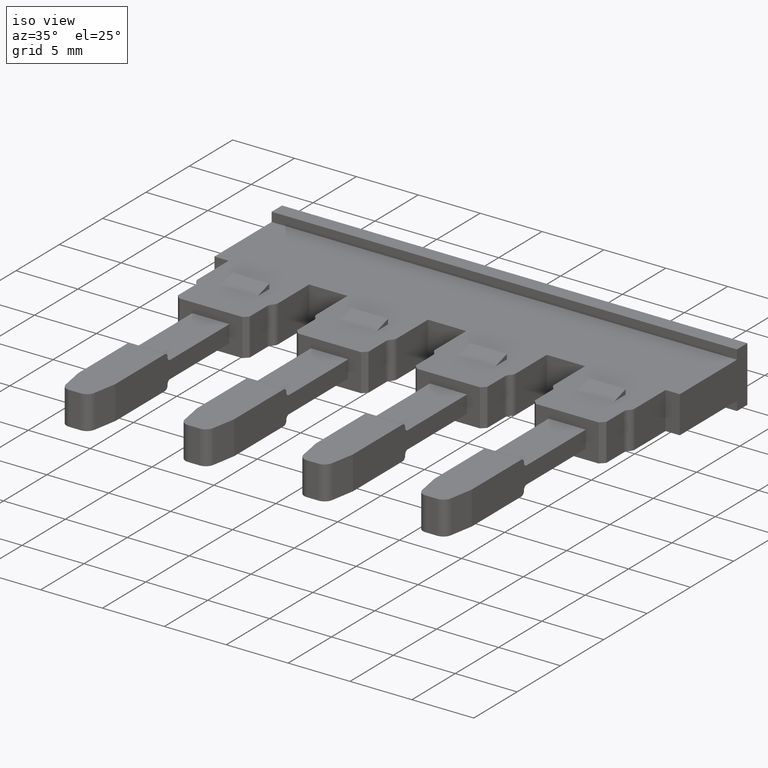
[diagram: clean part render]
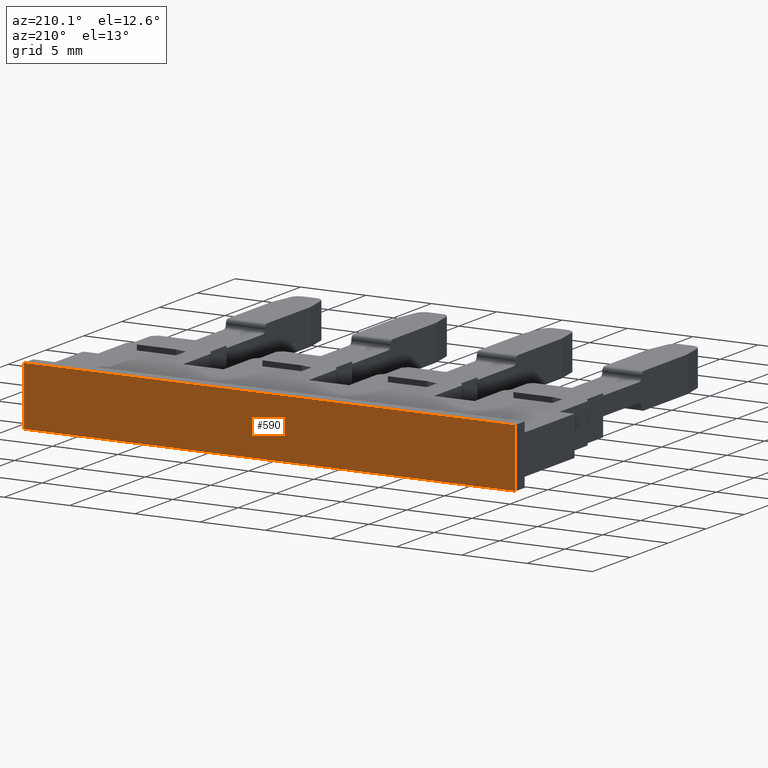
[diagram: tour spotlight — one face highlighted and labeled with its STEP entity id]
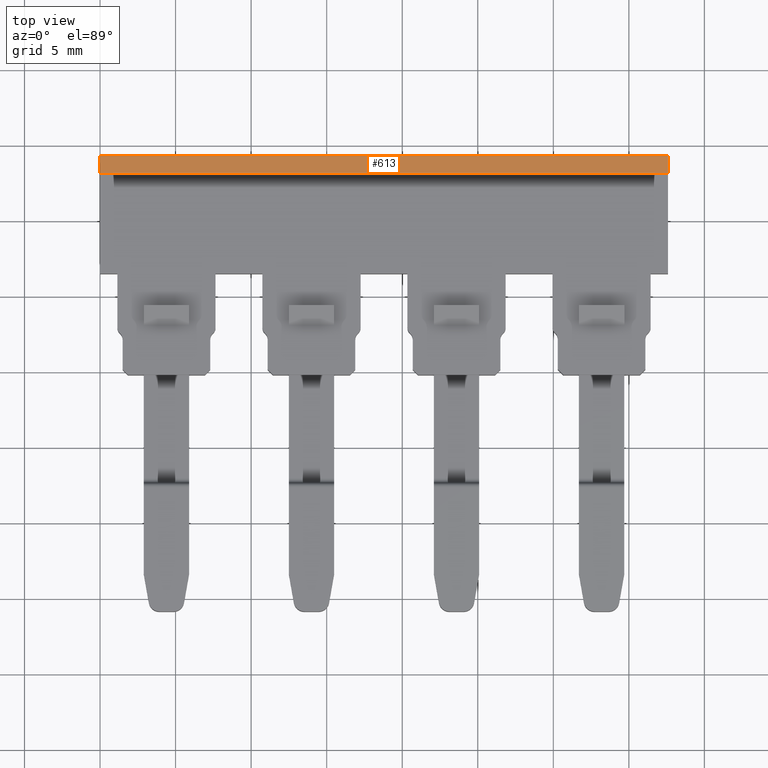
[diagram: tour spotlight — one face highlighted and labeled with its STEP entity id]
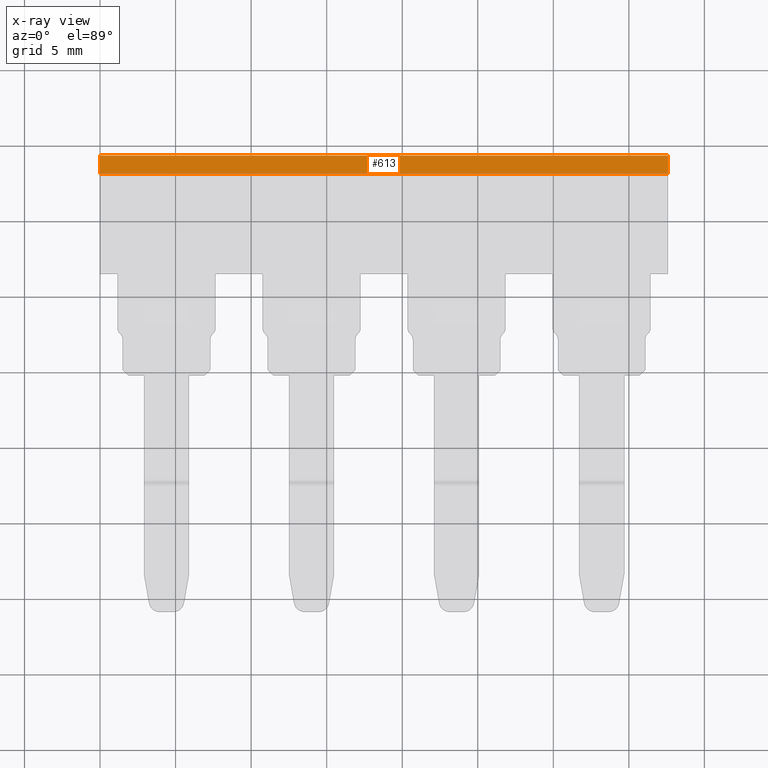
[diagram: x-ray of the same camera — body ghosted, this tour face saturated]
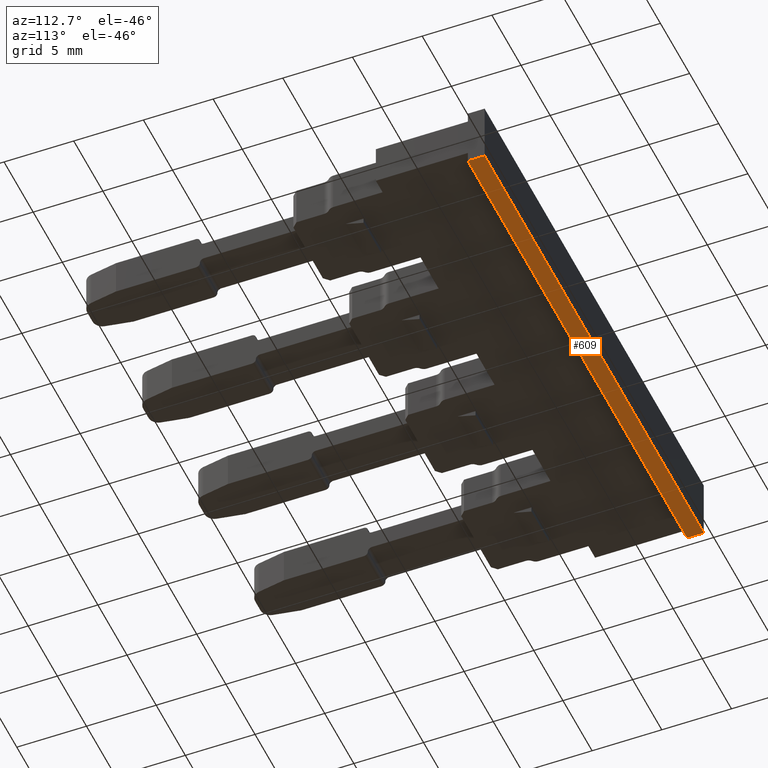
[diagram: tour spotlight — one face highlighted and labeled with its STEP entity id]
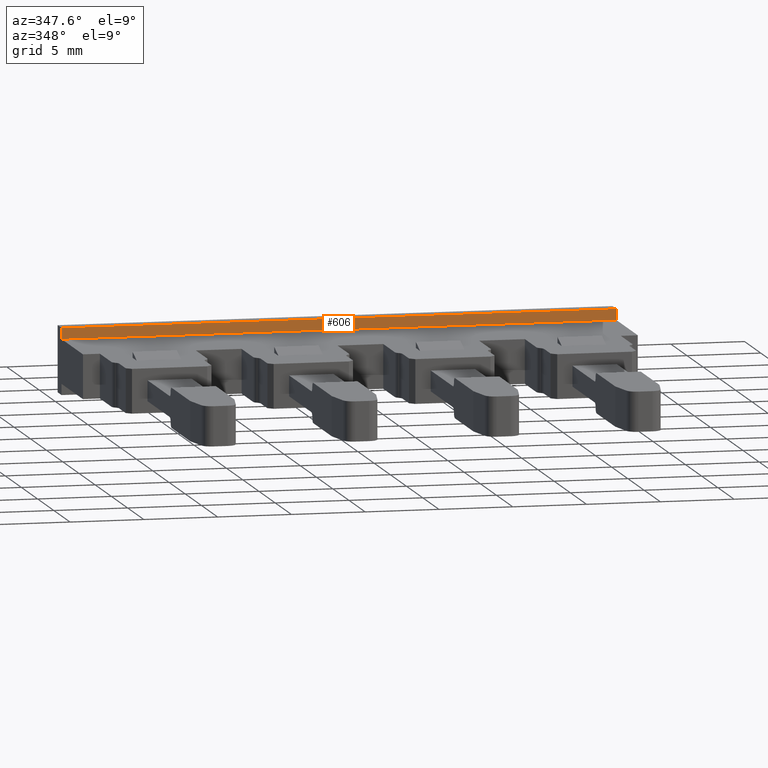
[diagram: tour spotlight — one face highlighted and labeled with its STEP entity id]
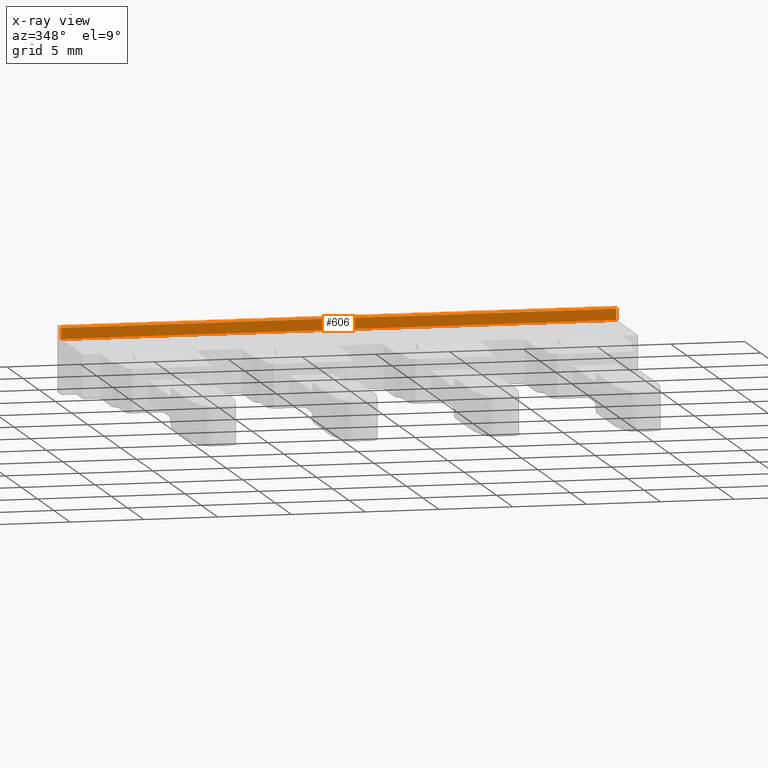
[diagram: x-ray of the same camera — body ghosted, this tour face saturated]
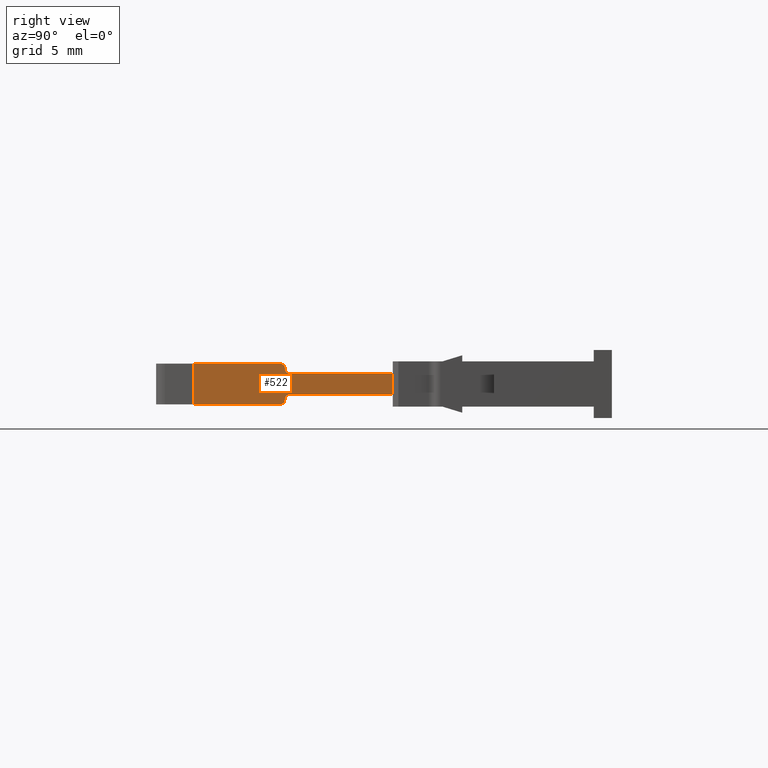
[diagram: tour spotlight — one face highlighted and labeled with its STEP entity id]
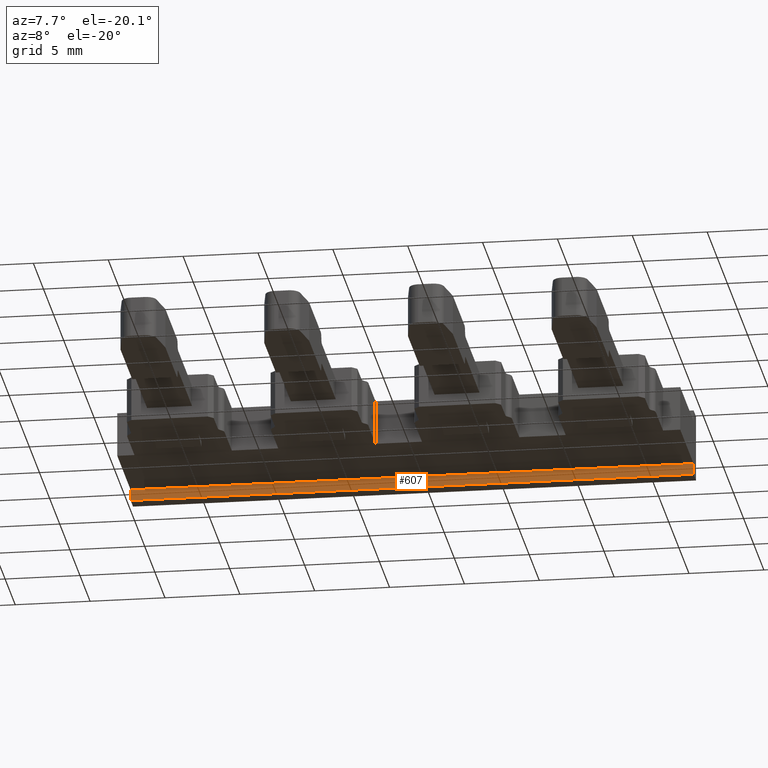
[diagram: tour spotlight — one face highlighted and labeled with its STEP entity id]
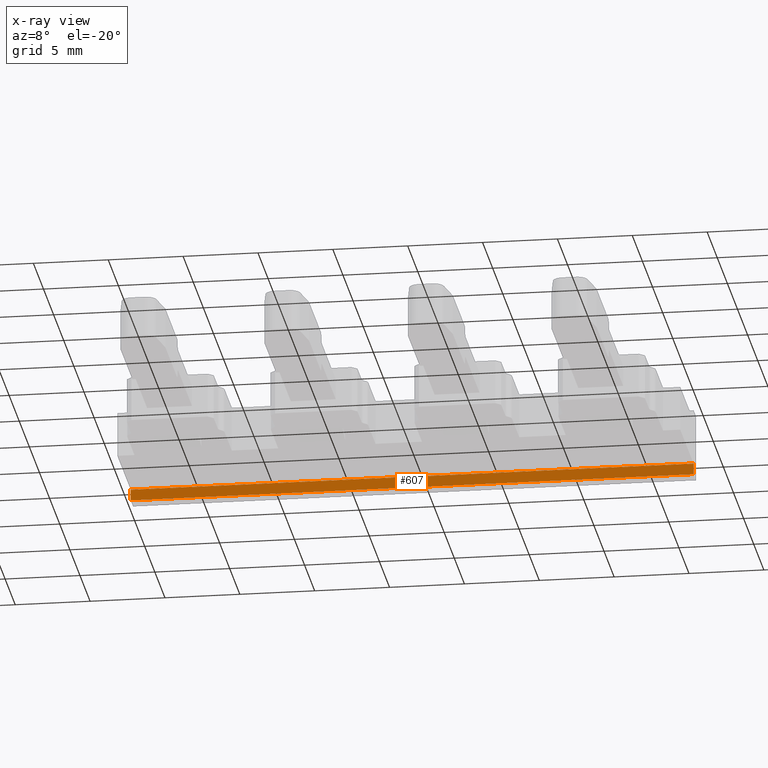
[diagram: x-ray of the same camera — body ghosted, this tour face saturated]
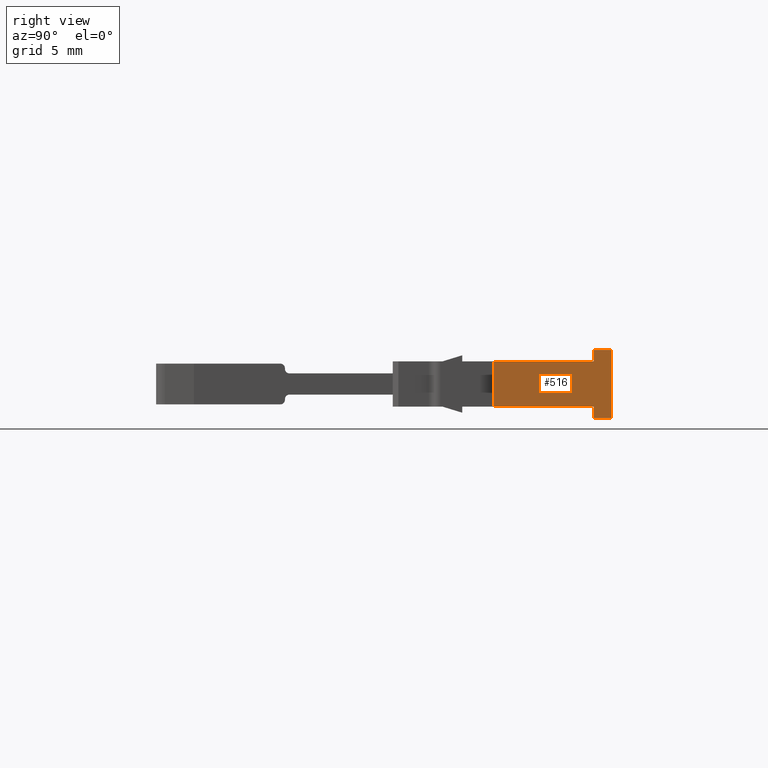
[diagram: tour spotlight — one face highlighted and labeled with its STEP entity id]
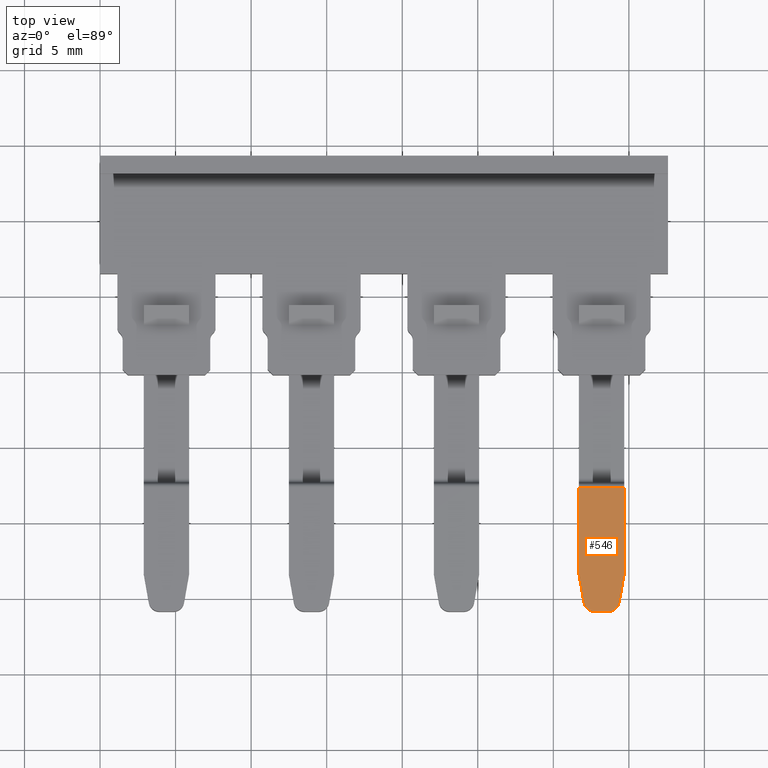
[diagram: tour spotlight — one face highlighted and labeled with its STEP entity id]
A machine part: a face-by-face anatomy tour. The part has 170 B-rep faces; the first image is the clean iso view, then the 8 largest visible faces are spotlighted one at a time (largest first), each with its STEP entity span.

Face 1 — auxiliary view, entity #590. In plain terms, the highlighted planar face has unit normal (0, -1, 0).
Definition (entity closure, byte-faithful):
#18 = EDGE_CURVE ( 'NONE', #5267, #5272, #1102, .T. ) ;
#29 = EDGE_CURVE ( 'NONE', #5267, #4983, #1149, .T. ) ;
#63 = EDGE_CURVE ( 'NONE', #5306, #5272, #1228, .T. ) ;
#64 = EDGE_CURVE ( 'NONE', #5306, #4983, #1229, .T. ) ;
#590 = ADVANCED_FACE ( 'NONE', ( #1841 ), #1838, .F. ) ;
#1102 = LINE ( 'NONE', #1122, #2934 ) ;
#1114 = DIRECTION ( 'NONE',  ( -0.0000000000000000000, -0.0000000000000000000, 1.000000000000000000 ) ) ;
#1122 = CARTESIAN_POINT ( 'NONE',  ( 1119.994470802329900, 674.2878760720548100, 3.000000000000000000 ) ) ;
#1149 = LINE ( 'NONE', #1174, #2928 ) ;
#1174 = CARTESIAN_POINT ( 'NONE',  ( 1129.594470802330100, 674.2878760720548100, -0.7499999999999997800 ) ) ;
#1176 = DIRECTION ( 'NONE',  ( 1.000000000000000000, 0.0000000000000000000, 0.0000000000000000000 ) ) ;
#1228 = LINE ( 'NONE', #1268, #2998 ) ;
#1229 = LINE ( 'NONE', #1239, #3008 ) ;
#1236 = DIRECTION ( 'NONE',  ( -1.000000000000000000, -0.0000000000000000000, -0.0000000000000000000 ) ) ;
#1239 = CARTESIAN_POINT ( 'NONE',  ( 1157.594465032600300, 674.2878760720548100, 3.000000000000000000 ) ) ;
#1240 = DIRECTION ( 'NONE',  ( -0.0000000000000000000, -0.0000000000000000000, -1.000000000000000000 ) ) ;
#1268 = CARTESIAN_POINT ( 'NONE',  ( 1129.594470802330100, 674.2878760720548100, 3.750000000000000000 ) ) ;
#1746 = ORIENTED_EDGE ( 'NONE', *, *, #18, .T. ) ;
#1759 = ORIENTED_EDGE ( 'NONE', *, *, #63, .F. ) ;
#1766 = ORIENTED_EDGE ( 'NONE', *, *, #29, .F. ) ;
#1779 = ORIENTED_EDGE ( 'NONE', *, *, #64, .T. ) ;
#1808 = DIRECTION ( 'NONE',  ( 0.0000000000000000000, -0.0000000000000000000, -1.000000000000000000 ) ) ;
#1832 = DIRECTION ( 'NONE',  ( 0.0000000000000000000, -1.000000000000000000, 0.0000000000000000000 ) ) ;
#1836 = CARTESIAN_POINT ( 'NONE',  ( 1129.594470802330100, 674.2878760720548100, 3.000000000000000000 ) ) ;
#1838 = PLANE ( 'NONE',  #2857 ) ;
#1841 = FACE_OUTER_BOUND ( 'NONE', #4957, .T. ) ;
#2062 = CARTESIAN_POINT ( 'NONE',  ( 1157.594465032600300, 674.2878760720548100, -0.7499999999999997800 ) ) ;
#2297 = CARTESIAN_POINT ( 'NONE',  ( 1119.994470802329900, 674.2878760720548100, -0.7499999999999997800 ) ) ;
#2314 = CARTESIAN_POINT ( 'NONE',  ( 1119.994470802329900, 674.2878760720548100, 3.750000000000000000 ) ) ;
#2368 = CARTESIAN_POINT ( 'NONE',  ( 1157.594465032600300, 674.2878760720548100, 3.750000000000000000 ) ) ;
#2857 = AXIS2_PLACEMENT_3D ( 'NONE', #1836, #1832, #1808 ) ;
#2928 = VECTOR ( 'NONE', #1176, 1000.000000000000000 ) ;
#2934 = VECTOR ( 'NONE', #1114, 1000.000000000000000 ) ;
#2998 = VECTOR ( 'NONE', #1236, 1000.000000000000000 ) ;
#3008 = VECTOR ( 'NONE', #1240, 1000.000000000000000 ) ;
#4957 = EDGE_LOOP ( 'NONE', ( #1779, #1766, #1746, #1759 ) ) ;
#4983 = VERTEX_POINT ( 'NONE', #2062 ) ;
#5267 = VERTEX_POINT ( 'NONE', #2297 ) ;
#5272 = VERTEX_POINT ( 'NONE', #2314 ) ;
#5306 = VERTEX_POINT ( 'NONE', #2368 ) ;

Face 2 — top view, entity #613. An x-ray twin of the same camera follows (body ghosted, this face saturated) — the face is partly hidden behind the body. In plain terms, the highlighted planar face has unit normal (0, 0, 1).
Definition (entity closure, byte-faithful):
#7 = EDGE_CURVE ( 'NONE', #5261, #5306, #1119, .T. ) ;
#36 = EDGE_CURVE ( 'NONE', #5272, #5030, #1218, .T. ) ;
#60 = EDGE_CURVE ( 'NONE', #5261, #5030, #1253, .T. ) ;
#63 = EDGE_CURVE ( 'NONE', #5306, #5272, #1228, .T. ) ;
#613 = ADVANCED_FACE ( 'NONE', ( #1935 ), #1967, .T. ) ;
#1118 = CARTESIAN_POINT ( 'NONE',  ( 1157.594465032600300, 673.0878760720547700, 3.750000000000000000 ) ) ;
#1119 = LINE ( 'NONE', #1118, #2926 ) ;
#1120 = DIRECTION ( 'NONE',  ( -0.0000000000000000000, 1.000000000000000000, 0.0000000000000000000 ) ) ;
#1196 = CARTESIAN_POINT ( 'NONE',  ( 1119.994470802329900, 666.6212584401425800, 3.750000000000000000 ) ) ;
#1210 = DIRECTION ( 'NONE',  ( -0.0000000000000000000, -1.000000000000000000, -0.0000000000000000000 ) ) ;
#1218 = LINE ( 'NONE', #1196, #2954 ) ;
#1225 = CARTESIAN_POINT ( 'NONE',  ( 1129.594470802330100, 673.0878760720547700, 3.750000000000000000 ) ) ;
#1228 = LINE ( 'NONE', #1268, #2998 ) ;
#1236 = DIRECTION ( 'NONE',  ( -1.000000000000000000, -0.0000000000000000000, -0.0000000000000000000 ) ) ;
#1250 = DIRECTION ( 'NONE',  ( -1.000000000000000000, -0.0000000000000000000, -0.0000000000000000000 ) ) ;
#1253 = LINE ( 'NONE', #1225, #3004 ) ;
#1268 = CARTESIAN_POINT ( 'NONE',  ( 1129.594470802330100, 674.2878760720548100, 3.750000000000000000 ) ) ;
#1743 = ORIENTED_EDGE ( 'NONE', *, *, #63, .T. ) ;
#1752 = ORIENTED_EDGE ( 'NONE', *, *, #7, .T. ) ;
#1763 = ORIENTED_EDGE ( 'NONE', *, *, #60, .F. ) ;
#1769 = ORIENTED_EDGE ( 'NONE', *, *, #36, .T. ) ;
#1935 = FACE_OUTER_BOUND ( 'NONE', #4967, .T. ) ;
#1937 = DIRECTION ( 'NONE',  ( 1.000000000000000000, 0.0000000000000000000, -0.0000000000000000000 ) ) ;
#1946 = DIRECTION ( 'NONE',  ( 0.0000000000000000000, 0.0000000000000000000, 1.000000000000000000 ) ) ;
#1967 = PLANE ( 'NONE',  #2846 ) ;
#1968 = CARTESIAN_POINT ( 'NONE',  ( 1129.594470802330100, 673.0878760720547700, 3.750000000000000000 ) ) ;
#2069 = CARTESIAN_POINT ( 'NONE',  ( 1119.994470802329900, 673.0878760720547700, 3.750000000000000000 ) ) ;
#2296 = CARTESIAN_POINT ( 'NONE',  ( 1157.594465032600300, 673.0878760720547700, 3.750000000000000000 ) ) ;
#2314 = CARTESIAN_POINT ( 'NONE',  ( 1119.994470802329900, 674.2878760720548100, 3.750000000000000000 ) ) ;
#2368 = CARTESIAN_POINT ( 'NONE',  ( 1157.594465032600300, 674.2878760720548100, 3.750000000000000000 ) ) ;
#2846 = AXIS2_PLACEMENT_3D ( 'NONE', #1968, #1946, #1937 ) ;
#2926 = VECTOR ( 'NONE', #1120, 1000.000000000000000 ) ;
#2954 = VECTOR ( 'NONE', #1210, 1000.000000000000000 ) ;
#2998 = VECTOR ( 'NONE', #1236, 1000.000000000000000 ) ;
#3004 = VECTOR ( 'NONE', #1250, 1000.000000000000000 ) ;
#4967 = EDGE_LOOP ( 'NONE', ( #1743, #1769, #1763, #1752 ) ) ;
#5030 = VERTEX_POINT ( 'NONE', #2069 ) ;
#5261 = VERTEX_POINT ( 'NONE', #2296 ) ;
#5272 = VERTEX_POINT ( 'NONE', #2314 ) ;
#5306 = VERTEX_POINT ( 'NONE', #2368 ) ;

Face 3 — auxiliary view, entity #609. In plain terms, the highlighted planar face has unit normal (0, 0, 1).
Definition (entity closure, byte-faithful):
#12 = EDGE_CURVE ( 'NONE', #5305, #4983, #1091, .T. ) ;
#29 = EDGE_CURVE ( 'NONE', #5267, #4983, #1149, .T. ) ;
#58 = EDGE_CURVE ( 'NONE', #5267, #5033, #1257, .T. ) ;
#69 = EDGE_CURVE ( 'NONE', #5033, #5305, #1290, .T. ) ;
#609 = ADVANCED_FACE ( 'NONE', ( #1969 ), #1960, .F. ) ;
#1086 = CARTESIAN_POINT ( 'NONE',  ( 1157.594465032600300, 673.0878760720547700, -0.7499999999999997800 ) ) ;
#1090 = DIRECTION ( 'NONE',  ( -0.0000000000000000000, 1.000000000000000000, 0.0000000000000000000 ) ) ;
#1091 = LINE ( 'NONE', #1086, #2955 ) ;
#1149 = LINE ( 'NONE', #1174, #2928 ) ;
#1174 = CARTESIAN_POINT ( 'NONE',  ( 1129.594470802330100, 674.2878760720548100, -0.7499999999999997800 ) ) ;
#1176 = DIRECTION ( 'NONE',  ( 1.000000000000000000, 0.0000000000000000000, 0.0000000000000000000 ) ) ;
#1257 = LINE ( 'NONE', #1258, #2984 ) ;
#1258 = CARTESIAN_POINT ( 'NONE',  ( 1119.994470802329900, 673.0878760720547700, -0.7499999999999997800 ) ) ;
#1269 = DIRECTION ( 'NONE',  ( 0.0000000000000000000, -1.000000000000000000, -0.0000000000000000000 ) ) ;
#1290 = LINE ( 'NONE', #1292, #2977 ) ;
#1292 = CARTESIAN_POINT ( 'NONE',  ( 1129.594470802330100, 673.0878760720547700, -0.7499999999999997800 ) ) ;
#1302 = DIRECTION ( 'NONE',  ( 1.000000000000000000, 0.0000000000000000000, 0.0000000000000000000 ) ) ;
#1762 = ORIENTED_EDGE ( 'NONE', *, *, #69, .F. ) ;
#1788 = ORIENTED_EDGE ( 'NONE', *, *, #12, .F. ) ;
#1789 = ORIENTED_EDGE ( 'NONE', *, *, #58, .F. ) ;
#1797 = ORIENTED_EDGE ( 'NONE', *, *, #29, .T. ) ;
#1953 = DIRECTION ( 'NONE',  ( 1.000000000000000000, 0.0000000000000000000, -0.0000000000000000000 ) ) ;
#1960 = PLANE ( 'NONE',  #2890 ) ;
#1965 = CARTESIAN_POINT ( 'NONE',  ( 1129.594470802330100, 673.0878760720547700, -0.7499999999999997800 ) ) ;
#1966 = DIRECTION ( 'NONE',  ( 0.0000000000000000000, 0.0000000000000000000, 1.000000000000000000 ) ) ;
#1969 = FACE_OUTER_BOUND ( 'NONE', #4974, .T. ) ;
#2062 = CARTESIAN_POINT ( 'NONE',  ( 1157.594465032600300, 674.2878760720548100, -0.7499999999999997800 ) ) ;
#2075 = CARTESIAN_POINT ( 'NONE',  ( 1119.994470802329900, 673.0878760720547700, -0.7499999999999997800 ) ) ;
#2297 = CARTESIAN_POINT ( 'NONE',  ( 1119.994470802329900, 674.2878760720548100, -0.7499999999999997800 ) ) ;
#2366 = CARTESIAN_POINT ( 'NONE',  ( 1157.594465032600300, 673.0878760720547700, -0.7499999999999997800 ) ) ;
#2890 = AXIS2_PLACEMENT_3D ( 'NONE', #1965, #1966, #1953 ) ;
#2928 = VECTOR ( 'NONE', #1176, 1000.000000000000000 ) ;
#2955 = VECTOR ( 'NONE', #1090, 1000.000000000000000 ) ;
#2977 = VECTOR ( 'NONE', #1302, 1000.000000000000000 ) ;
#2984 = VECTOR ( 'NONE', #1269, 1000.000000000000000 ) ;
#4974 = EDGE_LOOP ( 'NONE', ( #1788, #1762, #1789, #1797 ) ) ;
#4983 = VERTEX_POINT ( 'NONE', #2062 ) ;
#5033 = VERTEX_POINT ( 'NONE', #2075 ) ;
#5267 = VERTEX_POINT ( 'NONE', #2297 ) ;
#5305 = VERTEX_POINT ( 'NONE', #2366 ) ;

Face 4 — auxiliary view, entity #606. An x-ray twin of the same camera follows (body ghosted, this face saturated) — the face is partly hidden behind the body. In plain terms, the highlighted planar face has unit normal (0, -1, 0).
Definition (entity closure, byte-faithful):
#21 = EDGE_CURVE ( 'NONE', #4995, #5261, #1098, .T. ) ;
#25 = EDGE_CURVE ( 'NONE', #5001, #4995, #1173, .T. ) ;
#37 = EDGE_CURVE ( 'NONE', #5030, #5001, #1209, .T. ) ;
#60 = EDGE_CURVE ( 'NONE', #5261, #5030, #1253, .T. ) ;
#606 = ADVANCED_FACE ( 'NONE', ( #1959 ), #1912, .T. ) ;
#1098 = LINE ( 'NONE', #1127, #2915 ) ;
#1127 = CARTESIAN_POINT ( 'NONE',  ( 1157.594465032600300, 673.0878760720547700, 3.000000000000000000 ) ) ;
#1145 = DIRECTION ( 'NONE',  ( 1.000000000000000000, -0.0000000000000000000, 0.0000000000000000000 ) ) ;
#1152 = CARTESIAN_POINT ( 'NONE',  ( 1137.394467408302300, 673.0878760720547700, 3.000000000000000000 ) ) ;
#1168 = DIRECTION ( 'NONE',  ( 0.0000000000000000000, 0.0000000000000000000, 1.000000000000000000 ) ) ;
#1173 = LINE ( 'NONE', #1152, #2940 ) ;
#1203 = CARTESIAN_POINT ( 'NONE',  ( 1119.994470802329900, 673.0878760720547700, -0.7499999999999997800 ) ) ;
#1208 = DIRECTION ( 'NONE',  ( 0.0000000000000000000, -0.0000000000000000000, -1.000000000000000000 ) ) ;
#1209 = LINE ( 'NONE', #1203, #2912 ) ;
#1225 = CARTESIAN_POINT ( 'NONE',  ( 1129.594470802330100, 673.0878760720547700, 3.750000000000000000 ) ) ;
#1250 = DIRECTION ( 'NONE',  ( -1.000000000000000000, -0.0000000000000000000, -0.0000000000000000000 ) ) ;
#1253 = LINE ( 'NONE', #1225, #3004 ) ;
#1760 = ORIENTED_EDGE ( 'NONE', *, *, #25, .T. ) ;
#1767 = ORIENTED_EDGE ( 'NONE', *, *, #21, .T. ) ;
#1768 = ORIENTED_EDGE ( 'NONE', *, *, #37, .T. ) ;
#1801 = ORIENTED_EDGE ( 'NONE', *, *, #60, .T. ) ;
#1912 = PLANE ( 'NONE',  #2889 ) ;
#1954 = CARTESIAN_POINT ( 'NONE',  ( 1129.594470802330100, 673.0878760720547700, -0.7499999999999997800 ) ) ;
#1959 = FACE_OUTER_BOUND ( 'NONE', #4936, .T. ) ;
#1972 = DIRECTION ( 'NONE',  ( 0.0000000000000000000, -1.000000000000000000, 0.0000000000000000000 ) ) ;
#1976 = DIRECTION ( 'NONE',  ( 0.0000000000000000000, -0.0000000000000000000, -1.000000000000000000 ) ) ;
#2051 = CARTESIAN_POINT ( 'NONE',  ( 1157.594465032600300, 673.0878760720547700, 3.000000000000000000 ) ) ;
#2069 = CARTESIAN_POINT ( 'NONE',  ( 1119.994470802329900, 673.0878760720547700, 3.750000000000000000 ) ) ;
#2079 = CARTESIAN_POINT ( 'NONE',  ( 1119.994470802329900, 673.0878760720547700, 3.000000000000000000 ) ) ;
#2296 = CARTESIAN_POINT ( 'NONE',  ( 1157.594465032600300, 673.0878760720547700, 3.750000000000000000 ) ) ;
#2889 = AXIS2_PLACEMENT_3D ( 'NONE', #1954, #1972, #1976 ) ;
#2912 = VECTOR ( 'NONE', #1208, 1000.000000000000000 ) ;
#2915 = VECTOR ( 'NONE', #1168, 1000.000000000000000 ) ;
#2940 = VECTOR ( 'NONE', #1145, 1000.000000000000000 ) ;
#3004 = VECTOR ( 'NONE', #1250, 1000.000000000000000 ) ;
#4936 = EDGE_LOOP ( 'NONE', ( #1801, #1768, #1760, #1767 ) ) ;
#4995 = VERTEX_POINT ( 'NONE', #2051 ) ;
#5001 = VERTEX_POINT ( 'NONE', #2079 ) ;
#5030 = VERTEX_POINT ( 'NONE', #2069 ) ;
#5261 = VERTEX_POINT ( 'NONE', #2296 ) ;

Face 5 — right view, entity #522. In plain terms, the highlighted planar face has unit normal (-1, -0, -0).
Definition (entity closure, byte-faithful):
#284 = EDGE_CURVE ( 'NONE', #5278, #5294, #3771, .T. ) ;
#285 = EDGE_CURVE ( 'NONE', #5298, #5230, #3748, .T. ) ;
#291 = EDGE_CURVE ( 'NONE', #5199, #5278, #3813, .T. ) ;
#292 = EDGE_CURVE ( 'NONE', #5307, #5199, #3807, .T. ) ;
#300 = EDGE_CURVE ( 'NONE', #5203, #5230, #3798, .T. ) ;
#306 = EDGE_CURVE ( 'NONE', #5224, #5294, #3292, .T. ) ;
#334 = EDGE_CURVE ( 'NONE', #5237, #5224, #3885, .T. ) ;
#366 = EDGE_CURVE ( 'NONE', #5203, #5237, #3304, .T. ) ;
#367 = EDGE_CURVE ( 'NONE', #5209, #5204, #3342, .T. ) ;
#384 = EDGE_CURVE ( 'NONE', #5298, #5209, #4099, .T. ) ;
#390 = EDGE_CURVE ( 'NONE', #5307, #5279, #3360, .T. ) ;
#409 = EDGE_CURVE ( 'NONE', #5279, #5204, #4107, .T. ) ;
#522 = ADVANCED_FACE ( 'NONE', ( #2528 ), #2549, .F. ) ;
#1685 = ORIENTED_EDGE ( 'NONE', *, *, #366, .F. ) ;
#1687 = ORIENTED_EDGE ( 'NONE', *, *, #409, .F. ) ;
#1688 = ORIENTED_EDGE ( 'NONE', *, *, #292, .T. ) ;
#1690 = ORIENTED_EDGE ( 'NONE', *, *, #334, .F. ) ;
#1697 = ORIENTED_EDGE ( 'NONE', *, *, #284, .T. ) ;
#1699 = ORIENTED_EDGE ( 'NONE', *, *, #367, .T. ) ;
#1714 = ORIENTED_EDGE ( 'NONE', *, *, #384, .T. ) ;
#1732 = ORIENTED_EDGE ( 'NONE', *, *, #291, .T. ) ;
#1737 = ORIENTED_EDGE ( 'NONE', *, *, #285, .F. ) ;
#1739 = ORIENTED_EDGE ( 'NONE', *, *, #306, .F. ) ;
#1748 = ORIENTED_EDGE ( 'NONE', *, *, #300, .T. ) ;
#1755 = ORIENTED_EDGE ( 'NONE', *, *, #390, .F. ) ;
#2219 = CARTESIAN_POINT ( 'NONE',  ( 1154.694442503212000, 652.6527367076482700, 2.500000000000050600 ) ) ;
#2223 = CARTESIAN_POINT ( 'NONE',  ( 1154.694444914909600, 652.6527367076623700, 0.4522013187405647900 ) ) ;
#2226 = CARTESIAN_POINT ( 'NONE',  ( 1154.694444807468700, 652.9527367076417500, 2.200000000000128100 ) ) ;
#2237 = CARTESIAN_POINT ( 'NONE',  ( 1154.694444700027800, 652.9527367076701700, 0.8000061035298857700 ) ) ;
#2239 = CARTESIAN_POINT ( 'NONE',  ( 1154.694444700027600, 659.7892820011524000, 0.8000061035156760300 ) ) ;
#2245 = CARTESIAN_POINT ( 'NONE',  ( 1154.694447179915200, 646.6283161340935500, 2.847804784775002800 ) ) ;
#2298 = CARTESIAN_POINT ( 'NONE',  ( 1154.694445129791600, 652.3527367076611700, 0.1522013187355868400 ) ) ;
#2317 = CARTESIAN_POINT ( 'NONE',  ( 1154.694449230039300, 646.6283161340936700, 0.1522013187403555300 ) ) ;
#2324 = CARTESIAN_POINT ( 'NONE',  ( 1154.694444914909600, 659.7892820011524000, 2.200000000000050800 ) ) ;
#2327 = CARTESIAN_POINT ( 'NONE',  ( 1154.694444914909600, 652.6527367076662400, 2.547804784775054900 ) ) ;
#2345 = CARTESIAN_POINT ( 'NONE',  ( 1154.694444914909600, 652.6527367076817000, 0.5000061035157291600 ) ) ;
#2370 = CARTESIAN_POINT ( 'NONE',  ( 1154.694445129791300, 652.3527367076559400, 2.847804784785298100 ) ) ;
#2515 = CARTESIAN_POINT ( 'NONE',  ( 1154.694458151265500, 634.1732509684160300, 1.500000000000051500 ) ) ;
#2517 = DIRECTION ( 'NONE',  ( 7.162729585980651700E-007, -0.9999999999997434300, 0.0000000000000000000 ) ) ;
#2528 = FACE_OUTER_BOUND ( 'NONE', #4821, .T. ) ;
#2542 = DIRECTION ( 'NONE',  ( -0.9999999999997435400, -7.162729585980652700E-007, -5.364441115333136100E-014 ) ) ;
#2549 = PLANE ( 'NONE',  #3472 ) ;
#3183 = VECTOR ( 'NONE', #3767, 1000.000000000000000 ) ;
#3216 = VECTOR ( 'NONE', #3737, 1000.000000000000100 ) ;
#3241 = VECTOR ( 'NONE', #3942, 1000.000000000000000 ) ;
#3258 = VECTOR ( 'NONE', #3801, 1000.000000000000100 ) ;
#3274 = VECTOR ( 'NONE', #3794, 1000.000000000000000 ) ;
#3286 = AXIS2_PLACEMENT_3D ( 'NONE', #3830, #3864, #3854 ) ;
#3291 = VECTOR ( 'NONE', #3821, 1000.000000000000000 ) ;
#3292 = CIRCLE ( 'NONE', #3286, 0.2999999999999672400 ) ;
#3301 = AXIS2_PLACEMENT_3D ( 'NONE', #4064, #4093, #4105 ) ;
#3304 = CIRCLE ( 'NONE', #3338, 0.2999999999999672900 ) ;
#3306 = VECTOR ( 'NONE', #4096, 1000.000000000000000 ) ;
#3338 = AXIS2_PLACEMENT_3D ( 'NONE', #4032, #4015, #4017 ) ;
#3342 = CIRCLE ( 'NONE', #3351, 0.2999999999999328800 ) ;
#3351 = AXIS2_PLACEMENT_3D ( 'NONE', #4030, #4035, #4054 ) ;
#3360 = CIRCLE ( 'NONE', #3301, 0.2999999999999674000 ) ;
#3401 = VECTOR ( 'NONE', #4167, 1000.000000000000000 ) ;
#3472 = AXIS2_PLACEMENT_3D ( 'NONE', #2515, #2542, #2517 ) ;
#3737 = DIRECTION ( 'NONE',  ( -7.162729585980651700E-007, 0.9999999999997434300, -8.974220355951169400E-013 ) ) ;
#3743 = CARTESIAN_POINT ( 'NONE',  ( 1154.694439803195100, 659.7892820011524000, 3.759999999999862100 ) ) ;
#3748 = LINE ( 'NONE', #3743, #3183 ) ;
#3754 = CARTESIAN_POINT ( 'NONE',  ( 1154.694449230035600, 646.6283210584171000, 0.1522013187407240700 ) ) ;
#3767 = DIRECTION ( 'NONE',  ( 5.364441115334512500E-014, 0.0000000000000000000, -1.000000000000000000 ) ) ;
#3771 = LINE ( 'NONE', #3754, #3216 ) ;
#3779 = CARTESIAN_POINT ( 'NONE',  ( 1154.694440091515200, 646.6283161340934400, -8.894767489097951300 ) ) ;
#3789 = CARTESIAN_POINT ( 'NONE',  ( 1154.694444700027600, 641.5303140484550100, 0.8000061035156760300 ) ) ;
#3794 = DIRECTION ( 'NONE',  ( 5.202683949995305800E-014, -9.173720110939495000E-015, -1.000000000000000000 ) ) ;
#3798 = LINE ( 'NONE', #3789, #3291 ) ;
#3801 = DIRECTION ( 'NONE',  ( 7.162729585980651700E-007, -0.9999999999997434300, -1.798537245413692200E-012 ) ) ;
#3807 = LINE ( 'NONE', #3815, #3258 ) ;
#3813 = LINE ( 'NONE', #3779, #3274 ) ;
#3815 = CARTESIAN_POINT ( 'NONE',  ( 1154.694445129787700, 652.3527416319764100, 2.847804784785298100 ) ) ;
#3821 = DIRECTION ( 'NONE',  ( 5.677532115032497500E-037, 1.000000000000000000, -1.058364141383339600E-023 ) ) ;
#3830 = CARTESIAN_POINT ( 'NONE',  ( 1154.694440091514700, 652.3527367076559400, 0.4522013187407246700 ) ) ;
#3854 = DIRECTION ( 'NONE',  ( 0.0000000000000000000, 0.0000000000000000000, 1.000000000000000000 ) ) ;
#3864 = DIRECTION ( 'NONE',  ( -1.000000000000000000, 0.0000000000000000000, -5.364441115151316900E-014 ) ) ;
#3885 = LINE ( 'NONE', #3947, #3241 ) ;
#3942 = DIRECTION ( 'NONE',  ( 5.364441115151316900E-014, -0.0000000000000000000, -1.000000000000000000 ) ) ;
#3947 = CARTESIAN_POINT ( 'NONE',  ( 1154.694440091515200, 652.6527367076765800, -8.894767489097951300 ) ) ;
#4015 = DIRECTION ( 'NONE',  ( 1.000000000000000000, -0.0000000000000000000, 5.364441115151316900E-014 ) ) ;
#4017 = DIRECTION ( 'NONE',  ( 0.0000000000000000000, 0.0000000000000000000, 1.000000000000000000 ) ) ;
#4030 = CARTESIAN_POINT ( 'NONE',  ( 1154.694444700027600, 652.9527367076431100, 2.500000000000050600 ) ) ;
#4032 = CARTESIAN_POINT ( 'NONE',  ( 1154.694440091514700, 652.9527367076971100, 0.5000061035156759800 ) ) ;
#4035 = DIRECTION ( 'NONE',  ( -0.9999999999997435400, -7.162729585980652700E-007, -5.364441115333136800E-014 ) ) ;
#4054 = DIRECTION ( 'NONE',  ( 7.162729668646924300E-007, -0.9999999999997435400, 0.0000000000000000000 ) ) ;
#4064 = CARTESIAN_POINT ( 'NONE',  ( 1154.694440091514500, 652.3527367076559400, 2.547804784775002100 ) ) ;
#4076 = CARTESIAN_POINT ( 'NONE',  ( 1154.694444914909600, 641.5303140484550100, 2.200000000000050800 ) ) ;
#4093 = DIRECTION ( 'NONE',  ( -1.000000000000000000, 0.0000000000000000000, -5.364441115151316900E-014 ) ) ;
#4096 = DIRECTION ( 'NONE',  ( -5.677532115032497500E-037, -1.000000000000000000, 1.058364141383339600E-023 ) ) ;
#4099 = LINE ( 'NONE', #4076, #3306 ) ;
#4105 = DIRECTION ( 'NONE',  ( 0.0000000000000000000, 0.0000000000000000000, 1.000000000000000000 ) ) ;
#4107 = LINE ( 'NONE', #4163, #3401 ) ;
#4163 = CARTESIAN_POINT ( 'NONE',  ( 1154.694440091515200, 652.6527367076765800, -8.894767489097951300 ) ) ;
#4167 = DIRECTION ( 'NONE',  ( 5.364441115151316900E-014, -0.0000000000000000000, -1.000000000000000000 ) ) ;
#4821 = EDGE_LOOP ( 'NONE', ( #1685, #1748, #1737, #1714, #1699, #1687, #1755, #1688, #1732, #1697, #1739, #1690 ) ) ;
#5199 = VERTEX_POINT ( 'NONE', #2245 ) ;
#5203 = VERTEX_POINT ( 'NONE', #2237 ) ;
#5204 = VERTEX_POINT ( 'NONE', #2219 ) ;
#5209 = VERTEX_POINT ( 'NONE', #2226 ) ;
#5224 = VERTEX_POINT ( 'NONE', #2223 ) ;
#5230 = VERTEX_POINT ( 'NONE', #2239 ) ;
#5237 = VERTEX_POINT ( 'NONE', #2345 ) ;
#5278 = VERTEX_POINT ( 'NONE', #2317 ) ;
#5279 = VERTEX_POINT ( 'NONE', #2327 ) ;
#5294 = VERTEX_POINT ( 'NONE', #2298 ) ;
#5298 = VERTEX_POINT ( 'NONE', #2324 ) ;
#5307 = VERTEX_POINT ( 'NONE', #2370 ) ;

Face 6 — auxiliary view, entity #607. An x-ray twin of the same camera follows (body ghosted, this face saturated) — the face is partly hidden behind the body. In plain terms, the highlighted planar face has unit normal (0, -1, 0).
Definition (entity closure, byte-faithful):
#61 = EDGE_CURVE ( 'NONE', #5022, #5033, #1223, .T. ) ;
#69 = EDGE_CURVE ( 'NONE', #5033, #5305, #1290, .T. ) ;
#70 = EDGE_CURVE ( 'NONE', #5305, #4997, #1287, .T. ) ;
#79 = EDGE_CURVE ( 'NONE', #5022, #4997, #1313, .T. ) ;
#607 = ADVANCED_FACE ( 'NONE', ( #1934 ), #1964, .T. ) ;
#1223 = LINE ( 'NONE', #1232, #3019 ) ;
#1232 = CARTESIAN_POINT ( 'NONE',  ( 1119.994470802329900, 673.0878760720547700, -0.7499999999999997800 ) ) ;
#1256 = DIRECTION ( 'NONE',  ( 0.0000000000000000000, -0.0000000000000000000, -1.000000000000000000 ) ) ;
#1271 = CARTESIAN_POINT ( 'NONE',  ( 1157.594465032600300, 673.0878760720547700, -0.7499999999999997800 ) ) ;
#1279 = CARTESIAN_POINT ( 'NONE',  ( 1137.394467408302300, 673.0878760720547700, 0.0000000000000000000 ) ) ;
#1287 = LINE ( 'NONE', #1271, #3006 ) ;
#1290 = LINE ( 'NONE', #1292, #2977 ) ;
#1292 = CARTESIAN_POINT ( 'NONE',  ( 1129.594470802330100, 673.0878760720547700, -0.7499999999999997800 ) ) ;
#1299 = DIRECTION ( 'NONE',  ( 1.000000000000000000, -0.0000000000000000000, 0.0000000000000000000 ) ) ;
#1301 = DIRECTION ( 'NONE',  ( -0.0000000000000000000, 0.0000000000000000000, 1.000000000000000000 ) ) ;
#1302 = DIRECTION ( 'NONE',  ( 1.000000000000000000, 0.0000000000000000000, 0.0000000000000000000 ) ) ;
#1313 = LINE ( 'NONE', #1279, #3010 ) ;
#1773 = ORIENTED_EDGE ( 'NONE', *, *, #70, .T. ) ;
#1775 = ORIENTED_EDGE ( 'NONE', *, *, #79, .F. ) ;
#1786 = ORIENTED_EDGE ( 'NONE', *, *, #69, .T. ) ;
#1799 = ORIENTED_EDGE ( 'NONE', *, *, #61, .T. ) ;
#1925 = DIRECTION ( 'NONE',  ( 0.0000000000000000000, -0.0000000000000000000, -1.000000000000000000 ) ) ;
#1934 = FACE_OUTER_BOUND ( 'NONE', #4977, .T. ) ;
#1939 = CARTESIAN_POINT ( 'NONE',  ( 1129.594470802330100, 673.0878760720547700, -0.7499999999999997800 ) ) ;
#1964 = PLANE ( 'NONE',  #2883 ) ;
#1975 = DIRECTION ( 'NONE',  ( 0.0000000000000000000, -1.000000000000000000, 0.0000000000000000000 ) ) ;
#2075 = CARTESIAN_POINT ( 'NONE',  ( 1119.994470802329900, 673.0878760720547700, -0.7499999999999997800 ) ) ;
#2082 = CARTESIAN_POINT ( 'NONE',  ( 1157.594465032600300, 673.0878760720547700, 0.0000000000000000000 ) ) ;
#2084 = CARTESIAN_POINT ( 'NONE',  ( 1119.994470802329900, 673.0878760720547700, 0.0000000000000000000 ) ) ;
#2366 = CARTESIAN_POINT ( 'NONE',  ( 1157.594465032600300, 673.0878760720547700, -0.7499999999999997800 ) ) ;
#2883 = AXIS2_PLACEMENT_3D ( 'NONE', #1939, #1975, #1925 ) ;
#2977 = VECTOR ( 'NONE', #1302, 1000.000000000000000 ) ;
#3006 = VECTOR ( 'NONE', #1301, 1000.000000000000000 ) ;
#3010 = VECTOR ( 'NONE', #1299, 1000.000000000000000 ) ;
#3019 = VECTOR ( 'NONE', #1256, 1000.000000000000000 ) ;
#4977 = EDGE_LOOP ( 'NONE', ( #1773, #1775, #1799, #1786 ) ) ;
#4997 = VERTEX_POINT ( 'NONE', #2082 ) ;
#5022 = VERTEX_POINT ( 'NONE', #2084 ) ;
#5033 = VERTEX_POINT ( 'NONE', #2075 ) ;
#5305 = VERTEX_POINT ( 'NONE', #2366 ) ;

Face 7 — right view, entity #516. In plain terms, the highlighted planar face has unit normal (-1, 0, 0).
Definition (entity closure, byte-faithful):
#7 = EDGE_CURVE ( 'NONE', #5261, #5306, #1119, .T. ) ;
#9 = EDGE_CURVE ( 'NONE', #4997, #5038, #1105, .T. ) ;
#12 = EDGE_CURVE ( 'NONE', #5305, #4983, #1091, .T. ) ;
#21 = EDGE_CURVE ( 'NONE', #4995, #5261, #1098, .T. ) ;
#64 = EDGE_CURVE ( 'NONE', #5306, #4983, #1229, .T. ) ;
#70 = EDGE_CURVE ( 'NONE', #5305, #4997, #1287, .T. ) ;
#137 = EDGE_CURVE ( 'NONE', #4995, #5104, #1487, .T. ) ;
#380 = EDGE_CURVE ( 'NONE', #5038, #5104, #4091, .T. ) ;
#516 = ADVANCED_FACE ( 'NONE', ( #2467 ), #2465, .F. ) ;
#1086 = CARTESIAN_POINT ( 'NONE',  ( 1157.594465032600300, 673.0878760720547700, -0.7499999999999997800 ) ) ;
#1090 = DIRECTION ( 'NONE',  ( -0.0000000000000000000, 1.000000000000000000, 0.0000000000000000000 ) ) ;
#1091 = LINE ( 'NONE', #1086, #2955 ) ;
#1098 = LINE ( 'NONE', #1127, #2915 ) ;
#1105 = LINE ( 'NONE', #1128, #2936 ) ;
#1118 = CARTESIAN_POINT ( 'NONE',  ( 1157.594465032600300, 673.0878760720547700, 3.750000000000000000 ) ) ;
#1119 = LINE ( 'NONE', #1118, #2926 ) ;
#1120 = DIRECTION ( 'NONE',  ( -0.0000000000000000000, 1.000000000000000000, 0.0000000000000000000 ) ) ;
#1125 = DIRECTION ( 'NONE',  ( -0.0000000000000000000, -1.000000000000000000, 0.0000000000000000000 ) ) ;
#1127 = CARTESIAN_POINT ( 'NONE',  ( 1157.594465032600300, 673.0878760720547700, 3.000000000000000000 ) ) ;
#1128 = CARTESIAN_POINT ( 'NONE',  ( 1157.594465032600300, 666.6212584401425800, 0.0000000000000000000 ) ) ;
#1168 = DIRECTION ( 'NONE',  ( 0.0000000000000000000, 0.0000000000000000000, 1.000000000000000000 ) ) ;
#1229 = LINE ( 'NONE', #1239, #3008 ) ;
#1239 = CARTESIAN_POINT ( 'NONE',  ( 1157.594465032600300, 674.2878760720548100, 3.000000000000000000 ) ) ;
#1240 = DIRECTION ( 'NONE',  ( -0.0000000000000000000, -0.0000000000000000000, -1.000000000000000000 ) ) ;
#1271 = CARTESIAN_POINT ( 'NONE',  ( 1157.594465032600300, 673.0878760720547700, -0.7499999999999997800 ) ) ;
#1287 = LINE ( 'NONE', #1271, #3006 ) ;
#1301 = DIRECTION ( 'NONE',  ( -0.0000000000000000000, 0.0000000000000000000, 1.000000000000000000 ) ) ;
#1469 = DIRECTION ( 'NONE',  ( -0.0000000000000000000, -1.000000000000000000, -0.0000000000000000000 ) ) ;
#1475 = CARTESIAN_POINT ( 'NONE',  ( 1157.594465032600300, 662.1736497164254200, 3.000000000000000000 ) ) ;
#1487 = LINE ( 'NONE', #1475, #3070 ) ;
#2051 = CARTESIAN_POINT ( 'NONE',  ( 1157.594465032600300, 673.0878760720547700, 3.000000000000000000 ) ) ;
#2062 = CARTESIAN_POINT ( 'NONE',  ( 1157.594465032600300, 674.2878760720548100, -0.7499999999999997800 ) ) ;
#2077 = CARTESIAN_POINT ( 'NONE',  ( 1157.594465032600300, 666.4912584401425900, 0.0000000000000000000 ) ) ;
#2082 = CARTESIAN_POINT ( 'NONE',  ( 1157.594465032600300, 673.0878760720547700, 0.0000000000000000000 ) ) ;
#2102 = CARTESIAN_POINT ( 'NONE',  ( 1157.594465032600300, 666.4912584401425900, 3.000000000000000000 ) ) ;
#2296 = CARTESIAN_POINT ( 'NONE',  ( 1157.594465032600300, 673.0878760720547700, 3.750000000000000000 ) ) ;
#2366 = CARTESIAN_POINT ( 'NONE',  ( 1157.594465032600300, 673.0878760720547700, -0.7499999999999997800 ) ) ;
#2368 = CARTESIAN_POINT ( 'NONE',  ( 1157.594465032600300, 674.2878760720548100, 3.750000000000000000 ) ) ;
#2465 = PLANE ( 'NONE',  #3482 ) ;
#2466 = CARTESIAN_POINT ( 'NONE',  ( 1157.594465032600300, 666.6212584401425800, 3.000000000000000000 ) ) ;
#2467 = FACE_OUTER_BOUND ( 'NONE', #4907, .T. ) ;
#2468 = DIRECTION ( 'NONE',  ( -1.000000000000000000, 0.0000000000000000000, 0.0000000000000000000 ) ) ;
#2487 = DIRECTION ( 'NONE',  ( 0.0000000000000000000, 0.0000000000000000000, 1.000000000000000000 ) ) ;
#2915 = VECTOR ( 'NONE', #1168, 1000.000000000000000 ) ;
#2926 = VECTOR ( 'NONE', #1120, 1000.000000000000000 ) ;
#2936 = VECTOR ( 'NONE', #1125, 1000.000000000000000 ) ;
#2955 = VECTOR ( 'NONE', #1090, 1000.000000000000000 ) ;
#3006 = VECTOR ( 'NONE', #1301, 1000.000000000000000 ) ;
#3008 = VECTOR ( 'NONE', #1240, 1000.000000000000000 ) ;
#3070 = VECTOR ( 'NONE', #1469, 1000.000000000000000 ) ;
#3346 = VECTOR ( 'NONE', #4072, 1000.000000000000000 ) ;
#3482 = AXIS2_PLACEMENT_3D ( 'NONE', #2466, #2468, #2487 ) ;
#4072 = DIRECTION ( 'NONE',  ( 0.0000000000000000000, 0.0000000000000000000, 1.000000000000000000 ) ) ;
#4081 = CARTESIAN_POINT ( 'NONE',  ( 1157.594465032600300, 666.4912584401425900, 3.000000000000000000 ) ) ;
#4091 = LINE ( 'NONE', #4081, #3346 ) ;
#4544 = ORIENTED_EDGE ( 'NONE', *, *, #70, .F. ) ;
#4547 = ORIENTED_EDGE ( 'NONE', *, *, #21, .F. ) ;
#4548 = ORIENTED_EDGE ( 'NONE', *, *, #137, .T. ) ;
#4555 = ORIENTED_EDGE ( 'NONE', *, *, #12, .T. ) ;
#4556 = ORIENTED_EDGE ( 'NONE', *, *, #9, .F. ) ;
#4576 = ORIENTED_EDGE ( 'NONE', *, *, #380, .F. ) ;
#4604 = ORIENTED_EDGE ( 'NONE', *, *, #7, .F. ) ;
#4621 = ORIENTED_EDGE ( 'NONE', *, *, #64, .F. ) ;
#4907 = EDGE_LOOP ( 'NONE', ( #4544, #4555, #4621, #4604, #4547, #4548, #4576, #4556 ) ) ;
#4983 = VERTEX_POINT ( 'NONE', #2062 ) ;
#4995 = VERTEX_POINT ( 'NONE', #2051 ) ;
#4997 = VERTEX_POINT ( 'NONE', #2082 ) ;
#5038 = VERTEX_POINT ( 'NONE', #2077 ) ;
#5104 = VERTEX_POINT ( 'NONE', #2102 ) ;
#5261 = VERTEX_POINT ( 'NONE', #2296 ) ;
#5305 = VERTEX_POINT ( 'NONE', #2366 ) ;
#5306 = VERTEX_POINT ( 'NONE', #2368 ) ;

Face 8 — top view, entity #546. In plain terms, the highlighted planar face has unit normal (-0, 0, 1).
Definition (entity closure, byte-faithful):
#292 = EDGE_CURVE ( 'NONE', #5307, #5199, #3807, .T. ) ;
#309 = EDGE_CURVE ( 'NONE', #5247, #5211, #3862, .T. ) ;
#311 = EDGE_CURVE ( 'NONE', #5301, #5199, #3856, .T. ) ;
#319 = EDGE_CURVE ( 'NONE', #5217, #5197, #3910, .T. ) ;
#322 = EDGE_CURVE ( 'NONE', #5307, #5195, #3890, .T. ) ;
#324 = EDGE_CURVE ( 'NONE', #5247, #5197, #5403, .T. ) ;
#331 = EDGE_CURVE ( 'NONE', #5195, #5217, #3884, .T. ) ;
#343 = EDGE_CURVE ( 'NONE', #5301, #5211, #5404, .T. ) ;
#546 = ADVANCED_FACE ( 'NONE', ( #2647 ), #2649, .T. ) ;
#1698 = ORIENTED_EDGE ( 'NONE', *, *, #319, .T. ) ;
#1711 = ORIENTED_EDGE ( 'NONE', *, *, #322, .T. ) ;
#1725 = ORIENTED_EDGE ( 'NONE', *, *, #311, .T. ) ;
#1727 = ORIENTED_EDGE ( 'NONE', *, *, #343, .F. ) ;
#1745 = ORIENTED_EDGE ( 'NONE', *, *, #309, .T. ) ;
#1756 = ORIENTED_EDGE ( 'NONE', *, *, #292, .F. ) ;
#1761 = ORIENTED_EDGE ( 'NONE', *, *, #331, .T. ) ;
#1783 = ORIENTED_EDGE ( 'NONE', *, *, #324, .F. ) ;
#2245 = CARTESIAN_POINT ( 'NONE',  ( 1154.694447179915200, 646.6283161340935500, 2.847804784775002800 ) ) ;
#2255 = CARTESIAN_POINT ( 'NONE',  ( 1152.033259543838500, 644.7067378249283800, 2.847804784774855300 ) ) ;
#2259 = CARTESIAN_POINT ( 'NONE',  ( 1153.666249097331500, 644.1282913512167200, 2.847804784774927700 ) ) ;
#2261 = CARTESIAN_POINT ( 'NONE',  ( 1151.694434011690900, 646.6283161340937800, 2.847804784774841100 ) ) ;
#2271 = CARTESIAN_POINT ( 'NONE',  ( 1151.694434011690900, 652.3527719075091200, 2.847804784774824700 ) ) ;
#2320 = CARTESIAN_POINT ( 'NONE',  ( 1154.355614559366800, 644.7067378249282700, 2.847804784774987200 ) ) ;
#2326 = CARTESIAN_POINT ( 'NONE',  ( 1152.722625005873900, 644.1282913512167200, 2.847804784774896200 ) ) ;
#2370 = CARTESIAN_POINT ( 'NONE',  ( 1154.694445129791300, 652.3527367076559400, 2.847804784785298100 ) ) ;
#2624 = CARTESIAN_POINT ( 'NONE',  ( 1155.694434382171300, 641.5303140484550100, 2.847804784775056100 ) ) ;
#2647 = FACE_OUTER_BOUND ( 'NONE', #4826, .T. ) ;
#2649 = PLANE ( 'NONE',  #3487 ) ;
#2650 = DIRECTION ( 'NONE',  ( -5.364441115334514400E-014, 1.058364141383339600E-023, 1.000000000000000000 ) ) ;
#2651 = DIRECTION ( 'NONE',  ( 1.000000000000000000, 0.0000000000000000000, 5.364441115334514400E-014 ) ) ;
#3239 = VECTOR ( 'NONE', #3926, 1000.000000000000000 ) ;
#3250 = VECTOR ( 'NONE', #3847, 1000.000000000000000 ) ;
#3258 = VECTOR ( 'NONE', #3801, 1000.000000000000100 ) ;
#3267 = VECTOR ( 'NONE', #3857, 1000.000000000000100 ) ;
#3279 = VECTOR ( 'NONE', #3912, 1000.000000000000100 ) ;
#3283 = VECTOR ( 'NONE', #3911, 1000.000000000000100 ) ;
#3487 = AXIS2_PLACEMENT_3D ( 'NONE', #2624, #2650, #2651 ) ;
#3801 = DIRECTION ( 'NONE',  ( 7.162729585980651700E-007, -0.9999999999997434300, -1.798537245413692200E-012 ) ) ;
#3807 = LINE ( 'NONE', #3815, #3258 ) ;
#3815 = CARTESIAN_POINT ( 'NONE',  ( 1154.694445129787700, 652.3527416319764100, 2.847804784785298100 ) ) ;
#3828 = CARTESIAN_POINT ( 'NONE',  ( 1154.355614559366800, 644.7067378249282700, 2.847804784774984100 ) ) ;
#3837 = CARTESIAN_POINT ( 'NONE',  ( 1144.807395039572600, 644.1282913512167200, 2.847804784774895700 ) ) ;
#3847 = DIRECTION ( 'NONE',  ( 1.000000000000000000, -1.720418656508634100E-014, -0.0000000000000000000 ) ) ;
#3856 = LINE ( 'NONE', #3828, #3267 ) ;
#3857 = DIRECTION ( 'NONE',  ( 0.1736478946976743900, 0.9848078029072806500, 9.334970462687131000E-015 ) ) ;
#3862 = LINE ( 'NONE', #3837, #3250 ) ;
#3868 = CARTESIAN_POINT ( 'NONE',  ( 1152.147886945759600, 644.3967687734993900, 2.847804784774865500 ) ) ;
#3870 = CARTESIAN_POINT ( 'NONE',  ( 1152.033259543838500, 644.7067378249283800, 2.847804784774855300 ) ) ;
#3884 = LINE ( 'NONE', #3943, #3239 ) ;
#3890 = LINE ( 'NONE', #3908, #3279 ) ;
#3893 = CARTESIAN_POINT ( 'NONE',  ( 1152.397460258348500, 644.1873518378540700, 2.847804784774878900 ) ) ;
#3898 = CARTESIAN_POINT ( 'NONE',  ( 1152.061546339674800, 644.5463151644213400, 2.847804784774861100 ) ) ;
#3901 = CARTESIAN_POINT ( 'NONE',  ( 1151.694434011690900, 646.6283161340937800, 2.847804784774841100 ) ) ;
#3903 = CARTESIAN_POINT ( 'NONE',  ( 1152.559727575498800, 644.1282913512169400, 2.847804784774888600 ) ) ;
#3908 = CARTESIAN_POINT ( 'NONE',  ( 1154.694440091514500, 652.3527367076559400, 2.847804784775002300 ) ) ;
#3910 = LINE ( 'NONE', #3901, #3283 ) ;
#3911 = DIRECTION ( 'NONE',  ( 0.1736478946976646700, -0.9848078029072824300, 9.334970462686607200E-015 ) ) ;
#3912 = DIRECTION ( 'NONE',  ( -0.9999999999311652800, 1.173325889926041300E-005, -5.363175877137947600E-014 ) ) ;
#3918 = CARTESIAN_POINT ( 'NONE',  ( 1152.722625005873900, 644.1282913512167200, 2.847804784774896200 ) ) ;
#3919 = CARTESIAN_POINT ( 'NONE',  ( 1153.991413844856700, 644.1873518378539500, 2.847804784774964600 ) ) ;
#3920 = CARTESIAN_POINT ( 'NONE',  ( 1153.666249097331500, 644.1282913512167200, 2.847804784774927700 ) ) ;
#3926 = DIRECTION ( 'NONE',  ( -0.0000000000000000000, -1.000000000000000000, -0.0000000000000000000 ) ) ;
#3928 = CARTESIAN_POINT ( 'NONE',  ( 1154.327327763530300, 644.5463151644213400, 2.847804784774983200 ) ) ;
#3943 = CARTESIAN_POINT ( 'NONE',  ( 1151.694434011690900, 652.6527719075244200, 2.847804784774840700 ) ) ;
#3950 = CARTESIAN_POINT ( 'NONE',  ( 1154.355614559366800, 644.7067378249282700, 2.847804784774987200 ) ) ;
#3952 = CARTESIAN_POINT ( 'NONE',  ( 1153.829146527706800, 644.1282913512168300, 2.847804784774955700 ) ) ;
#3963 = CARTESIAN_POINT ( 'NONE',  ( 1154.240987157445300, 644.3967687734993900, 2.847804784774977900 ) ) ;
#4826 = EDGE_LOOP ( 'NONE', ( #1756, #1711, #1761, #1698, #1783, #1745, #1727, #1725 ) ) ;
#5195 = VERTEX_POINT ( 'NONE', #2271 ) ;
#5197 = VERTEX_POINT ( 'NONE', #2255 ) ;
#5199 = VERTEX_POINT ( 'NONE', #2245 ) ;
#5211 = VERTEX_POINT ( 'NONE', #2259 ) ;
#5217 = VERTEX_POINT ( 'NONE', #2261 ) ;
#5247 = VERTEX_POINT ( 'NONE', #2326 ) ;
#5301 = VERTEX_POINT ( 'NONE', #2320 ) ;
#5307 = VERTEX_POINT ( 'NONE', #2370 ) ;
#5403 = B_SPLINE_CURVE_WITH_KNOTS ( 'NONE', 3,
 ( #3918, #3903, #3893, #3868, #3898, #3870 ),
 .UNSPECIFIED., .F., .F.,
 ( 4, 2, 4 ),
 ( 0.0000000000000000000, 0.5000000000000000000, 1.000000000000000000 ),
 .UNSPECIFIED. ) ;
#5404 = B_SPLINE_CURVE_WITH_KNOTS ( 'NONE', 3,
 ( #3950, #3928, #3963, #3919, #3952, #3920 ),
 .UNSPECIFIED., .F., .F.,
 ( 4, 2, 4 ),
 ( 0.0000000000000000000, 0.5000000000000000000, 1.000000000000000000 ),
 .UNSPECIFIED. ) ;